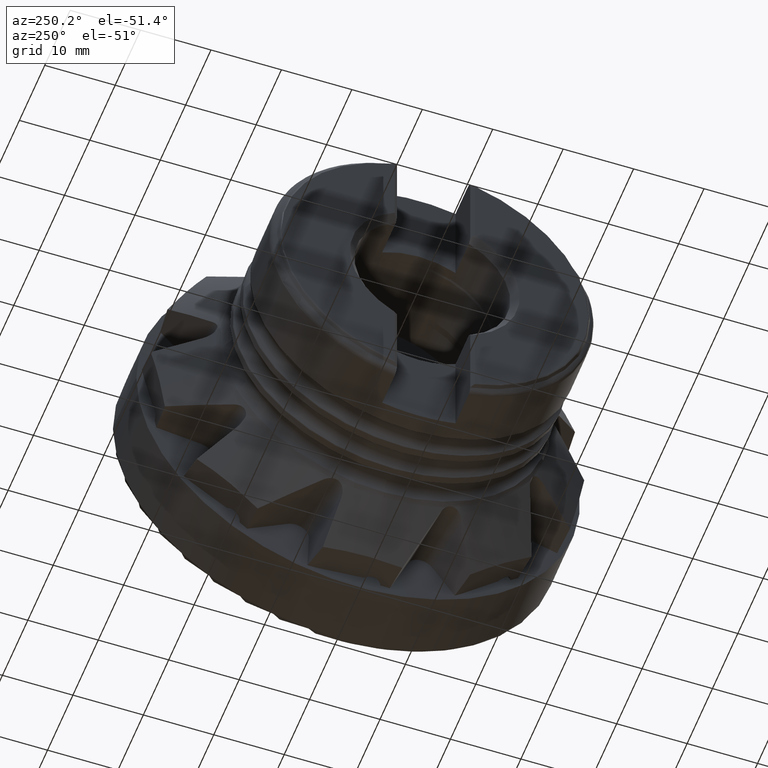
[diagram: clean part render]
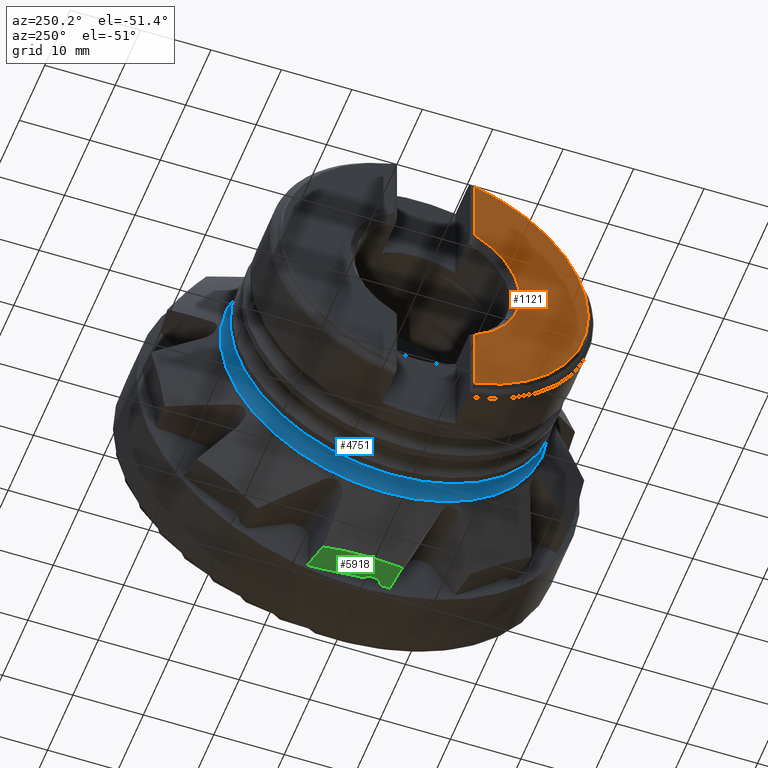
[diagram: same view with three faces highlighted in distinct colors, each labeled with its STEP entity id]
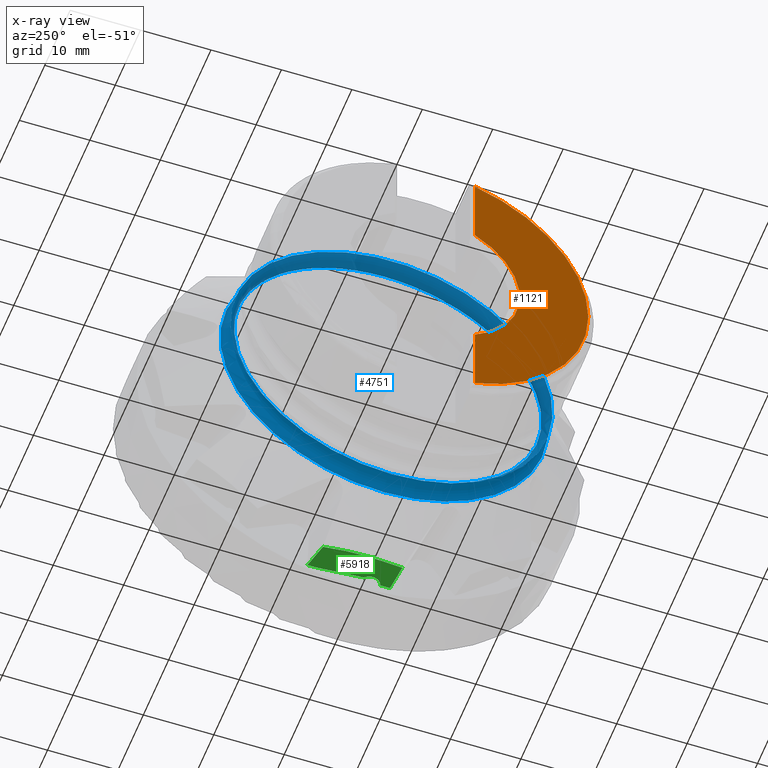
[diagram: x-ray of the same camera — body ghosted, the three highlighted faces saturated]
A machine part, auxiliary view with three faces highlighted in distinct colors.
The next image is the same camera in x-ray (body ghosted, the three faces saturated) — at least one of them is partly hidden behind the body in this view.
Their STEP definitions:

[orange] entity #1121 — the highlighted planar face has unit normal (-1, 0, 0).
#304 = CARTESIAN_POINT ( 'NONE',  ( -39.39999999999999900, -5.699999999999975300, 10.64498121181998700 ) ) ;
#326 = DIRECTION ( 'NONE',  ( 0.0000000000000000000, 1.000000000000000000, 0.0000000000000000000 ) ) ;
#490 = VERTEX_POINT ( 'NONE', #840 ) ;
#536 = CARTESIAN_POINT ( 'NONE',  ( -39.39999999999999900, 22.99999999999999600, 0.0000000000000000000 ) ) ;
#840 = CARTESIAN_POINT ( 'NONE',  ( -39.39999999999999900, -5.699999999999976200, -10.64498121181998700 ) ) ;
#976 = EDGE_CURVE ( 'NONE', #1727, #490, #6937, .T. ) ;
#1121 = ADVANCED_FACE ( 'NONE', ( #7294 ), #2487, .T. ) ;
#1180 = DIRECTION ( 'NONE',  ( 0.0000000000000000000, 0.0000000000000000000, 1.000000000000000000 ) ) ;
#1349 = AXIS2_PLACEMENT_3D ( 'NONE', #536, #5178, #1180 ) ;
#1435 = DIRECTION ( 'NONE',  ( 1.000000000000000000, -0.0000000000000000000, -0.0000000000000000000 ) ) ;
#1588 = VERTEX_POINT ( 'NONE', #7873 ) ;
#1600 = VECTOR ( 'NONE', #8020, 1000.000000000000000 ) ;
#1727 = VERTEX_POINT ( 'NONE', #304 ) ;
#2053 = EDGE_CURVE ( 'NONE', #3710, #1588, #7820, .T. ) ;
#2097 = AXIS2_PLACEMENT_3D ( 'NONE', #5451, #1435, #6135 ) ;
#2238 = VECTOR ( 'NONE', #7691, 1000.000000000000000 ) ;
#2408 = ORIENTED_EDGE ( 'NONE', *, *, #6882, .T. ) ;
#2487 = PLANE ( 'NONE',  #1349 ) ;
#3149 = CARTESIAN_POINT ( 'NONE',  ( -39.39999999999999900, -5.699999999999976200, 21.03126482168869400 ) ) ;
#3518 = AXIS2_PLACEMENT_3D ( 'NONE', #8399, #4275, #326 ) ;
#3710 = VERTEX_POINT ( 'NONE', #3149 ) ;
#3743 = EDGE_CURVE ( 'NONE', #3710, #1727, #5369, .T. ) ;
#4122 = ORIENTED_EDGE ( 'NONE', *, *, #976, .T. ) ;
#4275 = DIRECTION ( 'NONE',  ( 1.000000000000000000, 1.110223024625157000E-016, -0.0000000000000000000 ) ) ;
#5160 = EDGE_LOOP ( 'NONE', ( #4122, #2408, #6660, #5570 ) ) ;
#5178 = DIRECTION ( 'NONE',  ( -1.000000000000000000, 0.0000000000000000000, 0.0000000000000000000 ) ) ;
#5369 = LINE ( 'NONE', #7324, #1600 ) ;
#5451 = CARTESIAN_POINT ( 'NONE',  ( -39.39999999999999900, 0.0000000000000000000, 0.0000000000000000000 ) ) ;
#5570 = ORIENTED_EDGE ( 'NONE', *, *, #3743, .T. ) ;
#5837 = LINE ( 'NONE', #8390, #2238 ) ;
#6135 = DIRECTION ( 'NONE',  ( 0.0000000000000000000, 0.0000000000000000000, 1.000000000000000000 ) ) ;
#6660 = ORIENTED_EDGE ( 'NONE', *, *, #2053, .F. ) ;
#6882 = EDGE_CURVE ( 'NONE', #490, #1588, #5837, .T. ) ;
#6937 = CIRCLE ( 'NONE', #2097, 12.07500000000001000 ) ;
#7294 = FACE_OUTER_BOUND ( 'NONE', #5160, .T. ) ;
#7324 = CARTESIAN_POINT ( 'NONE',  ( -39.39999999999999900, -5.699999999999976200, 10.89796425943857400 ) ) ;
#7691 = DIRECTION ( 'NONE',  ( 0.0000000000000000000, 0.0000000000000000000, -1.000000000000000000 ) ) ;
#7820 = CIRCLE ( 'NONE', #3518, 21.78999999999999900 ) ;
#7873 = CARTESIAN_POINT ( 'NONE',  ( -39.39999999999999900, -5.699999999999974400, -21.03126482168869400 ) ) ;
#8020 = DIRECTION ( 'NONE',  ( 0.0000000000000000000, 0.0000000000000000000, -1.000000000000000000 ) ) ;
#8390 = CARTESIAN_POINT ( 'NONE',  ( -39.39999999999999900, -5.699999999999976200, -21.16043714104224400 ) ) ;
#8399 = CARTESIAN_POINT ( 'NONE',  ( -39.39999999999999900, -4.374278717023119000E-015, 0.0000000000000000000 ) ) ;

[blue] entity #4751 — the highlighted toroidal blend (fillet) surface has major radius 23.4 mm and minor (blend) radius 1.5 mm.
#266 = EDGE_LOOP ( 'NONE', ( #5102 ) ) ;
#311 = CARTESIAN_POINT ( 'NONE',  ( -20.89999999999999500, 0.0000000000000000000, 0.0000000000000000000 ) ) ;
#461 = CARTESIAN_POINT ( 'NONE',  ( -22.30346826946351500, 0.0000000000000000000, 0.0000000000000000000 ) ) ;
#851 = CARTESIAN_POINT ( 'NONE',  ( -19.40613999184830600, 0.0000000000000000000, -23.26441874745260900 ) ) ;
#856 = FACE_OUTER_BOUND ( 'NONE', #4087, .T. ) ;
#1103 = DIRECTION ( 'NONE',  ( 0.0000000000000000000, 0.0000000000000000000, -1.000000000000000000 ) ) ;
#1770 = AXIS2_PLACEMENT_3D ( 'NONE', #2860, #7631, #3540 ) ;
#1975 = EDGE_CURVE ( 'NONE', #2251, #2251, #7590, .T. ) ;
#2251 = VERTEX_POINT ( 'NONE', #851 ) ;
#2256 = DIRECTION ( 'NONE',  ( -1.000000000000000000, -0.0000000000000000000, -0.0000000000000000000 ) ) ;
#2860 = CARTESIAN_POINT ( 'NONE',  ( -19.40613999184830600, 0.0000000000000000000, 0.0000000000000000000 ) ) ;
#2896 = VERTEX_POINT ( 'NONE', #4914 ) ;
#2938 = DIRECTION ( 'NONE',  ( 0.0000000000000000000, 0.0000000000000000000, 1.000000000000000000 ) ) ;
#3207 = AXIS2_PLACEMENT_3D ( 'NONE', #311, #2256, #2938 ) ;
#3540 = DIRECTION ( 'NONE',  ( 0.0000000000000000000, 0.0000000000000000000, -1.000000000000000000 ) ) ;
#4087 = EDGE_LOOP ( 'NONE', ( #7854 ) ) ;
#4330 = AXIS2_PLACEMENT_3D ( 'NONE', #461, #5107, #1103 ) ;
#4751 = ADVANCED_FACE ( 'NONE', ( #856, #7847 ), #8060, .F. ) ;
#4914 = CARTESIAN_POINT ( 'NONE',  ( -22.30346826946351500, 0.0000000000000000000, -22.87058823529412900 ) ) ;
#5102 = ORIENTED_EDGE ( 'NONE', *, *, #1975, .F. ) ;
#5107 = DIRECTION ( 'NONE',  ( 1.000000000000000000, 0.0000000000000000000, 0.0000000000000000000 ) ) ;
#5998 = EDGE_CURVE ( 'NONE', #2896, #2896, #8096, .T. ) ;
#7590 = CIRCLE ( 'NONE', #1770, 23.26441874745260900 ) ;
#7631 = DIRECTION ( 'NONE',  ( 1.000000000000000000, -0.0000000000000000000, -0.0000000000000000000 ) ) ;
#7847 = FACE_OUTER_BOUND ( 'NONE', #266, .T. ) ;
#7854 = ORIENTED_EDGE ( 'NONE', *, *, #5998, .T. ) ;
#8060 = TOROIDAL_SURFACE ( 'NONE', #3207, 23.40000000000000600, 1.500000000000000900 ) ;
#8096 = CIRCLE ( 'NONE', #4330, 22.87058823529412900 ) ;

[green] entity #5918 — the highlighted planar face has unit normal (-0.0739, 0, 0.9973).
#91 = CARTESIAN_POINT ( 'NONE',  ( -9.250447685844076100, 5.819957569633087900, -29.92482776607423000 ) ) ;
#118 = LINE ( 'NONE', #5881, #7052 ) ;
#240 = DIRECTION ( 'NONE',  ( -0.07393443607558508600, 0.0000000000000000000, 0.9972631042820070400 ) ) ;
#747 = CARTESIAN_POINT ( 'NONE',  ( -9.226517797035402400, 7.236841432875649200, -29.92305366771761000 ) ) ;
#927 = CARTESIAN_POINT ( 'NONE',  ( -9.268585129246561700, -4.468791516298230300, -29.92617242792330500 ) ) ;
#963 = CARTESIAN_POINT ( 'NONE',  ( -13.32014907430739600, -4.781955993471117800, -30.22654461074517900 ) ) ;
#1050 = CARTESIAN_POINT ( 'NONE',  ( -13.32014907430739600, -4.781955993471117800, -30.22654461074517900 ) ) ;
#1073 = CARTESIAN_POINT ( 'NONE',  ( -9.268585129246561700, -4.468791516298230300, -29.92617242792330500 ) ) ;
#1227 = EDGE_CURVE ( 'NONE', #5646, #5367, #1674, .T. ) ;
#1243 = VECTOR ( 'NONE', #7082, 999.9999999999998900 ) ;
#1313 = CARTESIAN_POINT ( 'NONE',  ( -9.282238268633687300, -3.094136536511153100, -29.92718463539083700 ) ) ;
#1365 = DIRECTION ( 'NONE',  ( -0.07393443607558510000, 0.0000000000000000000, 0.9972631042820071500 ) ) ;
#1581 = CARTESIAN_POINT ( 'NONE',  ( -9.278503914852438000, -3.552352225024670400, -29.92690778032647000 ) ) ;
#1656 = AXIS2_PLACEMENT_3D ( 'NONE', #4193, #240, #4879 ) ;
#1674 = LINE ( 'NONE', #1940, #8708 ) ;
#1716 = CARTESIAN_POINT ( 'NONE',  ( -13.63573403927990700, -1.049706871396652200, -30.24994124132373900 ) ) ;
#1928 = ORIENTED_EDGE ( 'NONE', *, *, #7971, .F. ) ;
#1940 = CARTESIAN_POINT ( 'NONE',  ( 20.58602116822292400, 13.57369220998412200, -27.71283126310483200 ) ) ;
#2066 = CARTESIAN_POINT ( 'NONE',  ( -9.243301805701280600, 6.292254874202352100, -29.92429798951240400 ) ) ;
#2090 = VERTEX_POINT ( 'NONE', #7070 ) ;
#2353 = CARTESIAN_POINT ( 'NONE',  ( -13.54191057461403200, -2.915831432433884500, -30.24298541901271200 ) ) ;
#2383 = CARTESIAN_POINT ( 'NONE',  ( -13.38889592127899200, 4.548666811715047900, -30.23164131928912500 ) ) ;
#2567 = DIRECTION ( 'NONE',  ( 0.9755857817401315500, 0.2073671593808300300, 0.07232733699523155600 ) ) ;
#2604 = ORIENTED_EDGE ( 'NONE', *, *, #1227, .T. ) ;
#2608 = EDGE_CURVE ( 'NONE', #6056, #5117, #118, .T. ) ;
#2630 = B_SPLINE_CURVE_WITH_KNOTS ( 'NONE', 3,
 ( #91, #2066, #7462, #747 ),
 .UNSPECIFIED., .F., .F.,
 ( 4, 4 ),
 ( 0.01060210488768974700, 0.01201905869733816200 ),
 .UNSPECIFIED. ) ;
#2803 = EDGE_CURVE ( 'NONE', #4676, #2090, #4777, .T. ) ;
#3185 = CIRCLE ( 'NONE', #3727, 1.500000000000001100 ) ;
#3604 = EDGE_LOOP ( 'NONE', ( #1928, #6235, #7448, #2604, #7228, #8063, #6927 ) ) ;
#3727 = AXIS2_PLACEMENT_3D ( 'NONE', #5381, #1365, #6068 ) ;
#3756 = CARTESIAN_POINT ( 'NONE',  ( -13.09395926139061400, 6.414791372752281600, -30.20977549919286900 ) ) ;
#4193 = CARTESIAN_POINT ( 'NONE',  ( 15.54868939196510000, 37.40273165427941400, -28.08628565302873200 ) ) ;
#4289 = CARTESIAN_POINT ( 'NONE',  ( -9.804923764625362600, -0.5198329116128650500, -29.96593514889634900 ) ) ;
#4635 = EDGE_CURVE ( 'NONE', #4676, #5367, #2630, .T. ) ;
#4676 = VERTEX_POINT ( 'NONE', #7612 ) ;
#4777 = LINE ( 'NONE', #4289, #1243 ) ;
#4879 = DIRECTION ( 'NONE',  ( 0.9972631042820070400, 0.0000000000000000000, 0.07393443607558508600 ) ) ;
#5117 = VERTEX_POINT ( 'NONE', #963 ) ;
#5299 = FACE_OUTER_BOUND ( 'NONE', #3604, .T. ) ;
#5367 = VERTEX_POINT ( 'NONE', #6580 ) ;
#5381 = CARTESIAN_POINT ( 'NONE',  ( -8.835814914570857300, -1.662490350715735600, -29.89408799440222700 ) ) ;
#5457 = VERTEX_POINT ( 'NONE', #1313 ) ;
#5593 = EDGE_CURVE ( 'NONE', #5117, #5646, #6071, .T. ) ;
#5609 = CARTESIAN_POINT ( 'NONE',  ( -9.273948281727781400, -4.010570566436207700, -29.92657003779434200 ) ) ;
#5646 = VERTEX_POINT ( 'NONE', #3756 ) ;
#5881 = CARTESIAN_POINT ( 'NONE',  ( 18.60184448805381400, -2.314554624619956400, -27.85993284872726500 ) ) ;
#5918 = ADVANCED_FACE ( 'NONE', ( #5299 ), #6915, .F. ) ;
#6056 = VERTEX_POINT ( 'NONE', #1073 ) ;
#6068 = DIRECTION ( 'NONE',  ( 0.9972631042820069300, 0.0000000000000000000, 0.07393443607558535000 ) ) ;
#6071 = B_SPLINE_CURVE_WITH_KNOTS ( 'NONE', 3,
 ( #1050, #2353, #1716, #6409, #2383, #7126 ),
 .UNSPECIFIED., .F., .F.,
 ( 4, 2, 4 ),
 ( 0.002204214959735584800, 0.007802588642847284100, 0.01340096232595898400 ),
 .UNSPECIFIED. ) ;
#6235 = ORIENTED_EDGE ( 'NONE', *, *, #2608, .T. ) ;
#6261 = EDGE_CURVE ( 'NONE', #2090, #5457, #3185, .T. ) ;
#6283 = CARTESIAN_POINT ( 'NONE',  ( -9.282238268633687300, -3.094136536511153100, -29.92718463539083700 ) ) ;
#6409 = CARTESIAN_POINT ( 'NONE',  ( -13.55920157120034400, 2.682542250677813400, -30.24426732754447400 ) ) ;
#6580 = CARTESIAN_POINT ( 'NONE',  ( -9.226517797035402400, 7.236841432875649200, -29.92305366771761000 ) ) ;
#6915 = PLANE ( 'NONE',  #1656 ) ;
#6927 = ORIENTED_EDGE ( 'NONE', *, *, #6261, .T. ) ;
#7052 = VECTOR ( 'NONE', #7954, 1000.000000000000100 ) ;
#7070 = CARTESIAN_POINT ( 'NONE',  ( -9.804923764625362600, -0.5198329116128650500, -29.96593514889634900 ) ) ;
#7082 = DIRECTION ( 'NONE',  ( -0.08712527615752602200, -0.9961764223868092600, -0.006459236417127848000 ) ) ;
#7126 = CARTESIAN_POINT ( 'NONE',  ( -13.09395926139061400, 6.414791372752281600, -30.20977549919286900 ) ) ;
#7228 = ORIENTED_EDGE ( 'NONE', *, *, #4635, .F. ) ;
#7448 = ORIENTED_EDGE ( 'NONE', *, *, #5593, .T. ) ;
#7462 = CARTESIAN_POINT ( 'NONE',  ( -9.235317112407750900, 6.764549469235856100, -29.92370602557293700 ) ) ;
#7612 = CARTESIAN_POINT ( 'NONE',  ( -9.250447685844076100, 5.819957569633087900, -29.92482776607423000 ) ) ;
#7954 = DIRECTION ( 'NONE',  ( -0.9943134662198780400, -0.07685517518875034600, -0.07371575774905903000 ) ) ;
#7971 = EDGE_CURVE ( 'NONE', #6056, #5457, #8180, .T. ) ;
#8063 = ORIENTED_EDGE ( 'NONE', *, *, #2803, .T. ) ;
#8180 = B_SPLINE_CURVE_WITH_KNOTS ( 'NONE', 3,
 ( #927, #5609, #1581, #6283 ),
 .UNSPECIFIED., .F., .F.,
 ( 4, 4 ),
 ( 0.0003133505980793601300, 0.001687954343242938400 ),
 .UNSPECIFIED. ) ;
#8708 = VECTOR ( 'NONE', #2567, 1000.000000000000100 ) ;